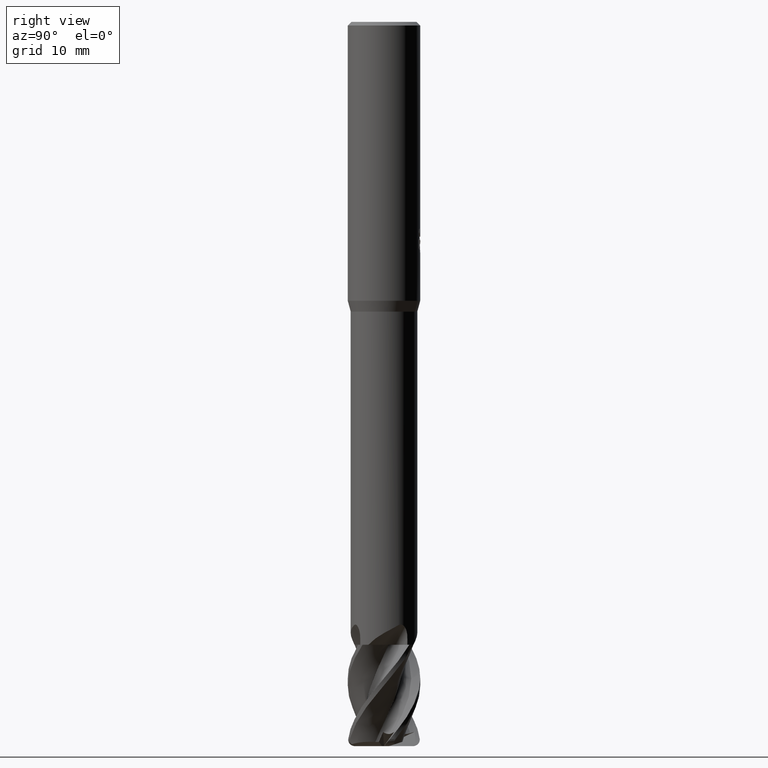
[diagram: clean part render]
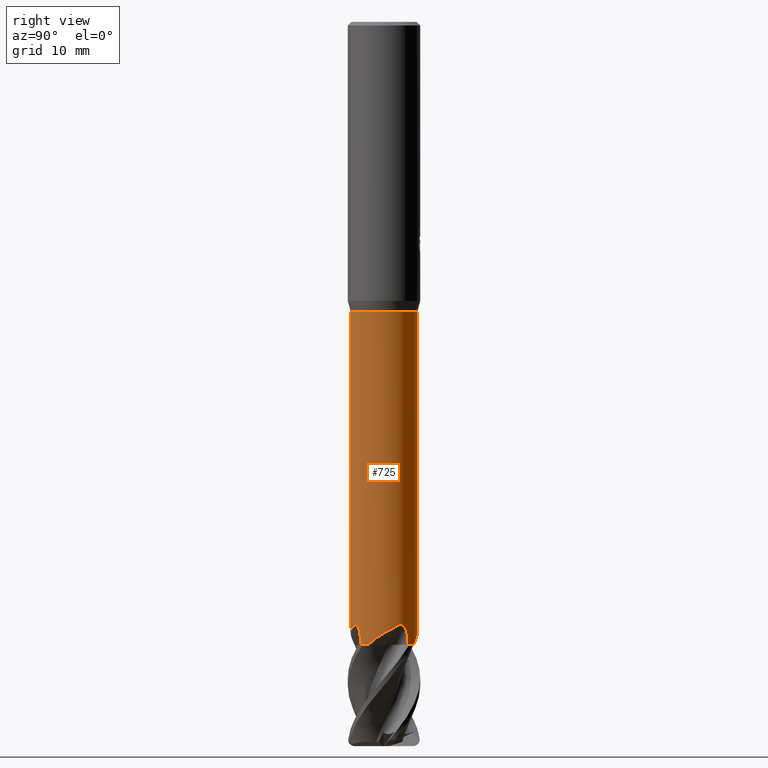
[diagram: same view with one face highlighted and labeled with its STEP entity id]
A machine part, right view. The second image highlights one B-rep face of the part: STEP entity #725.
In plain terms, the highlighted cylindrical surface (edge-blend (fillet) strip) has radius 4.5999 mm, axis along (-0, -0, 1).
Its self-contained STEP definition (entity closure, byte-faithful):
#537=VERTEX_POINT('',#1564);
#555=EDGE_CURVE('',#919,#1347,#1583,.T.);
#613=VERTEX_POINT('',#1647);
#625=EDGE_CURVE('',#795,#1455,#1660,.T.);
#659=VERTEX_POINT('',#1696);
#661=EDGE_CURVE('',#919,#537,#1698,.T.);
#725=ADVANCED_FACE('',(#1768),#1769,.T.);
#795=VERTEX_POINT('',#1848);
#865=EDGE_CURVE('',#1009,#1355,#1922,.T.);
#867=EDGE_CURVE('',#1347,#1171,#1924,.T.);
#919=VERTEX_POINT('',#1979);
#955=VERTEX_POINT('',#2018);
#1003=VERTEX_POINT('',#2070);
#1005=EDGE_CURVE('',#955,#659,#2072,.T.);
#1009=VERTEX_POINT('',#2076);
#1105=EDGE_CURVE('',#1171,#1003,#2185,.T.);
#1159=EDGE_CURVE('',#613,#1355,#2243,.T.);
#1165=EDGE_CURVE('',#659,#537,#2250,.T.);
#1171=VERTEX_POINT('',#2257);
#1249=EDGE_CURVE('',#1009,#1455,#2348,.T.);
#1323=EDGE_CURVE('',#795,#955,#2431,.T.);
#1347=VERTEX_POINT('',#2456);
#1355=VERTEX_POINT('',#2464);
#1455=VERTEX_POINT('',#2571);
#1499=EDGE_CURVE('',#613,#1003,#2619,.T.);
#1564=CARTESIAN_POINT('',(3.23073937328361,-3.27442561442691,-86.0));
#1583=B_SPLINE_CURVE_WITH_KNOTS('',3,(#2707,#2708,#2709,#2710,#2711,#2712,#2713,#2714),.UNSPECIFIED.,.F.,.F.,(4,2,2,4),(0.0,1.70493436532066,3.59896437571405,5.17647264822824),.UNSPECIFIED.);
#1647=CARTESIAN_POINT('',(2.14627587812099,4.06854271914355,-86.0));
#1660=LINE('',#3360,#3361);
#1696=CARTESIAN_POINT('',(3.21558660220532,-3.28930734444467,-84.878123541261));
#1698=CIRCLE('',#3507,4.59995);
#1768=FACE_OUTER_BOUND('',#4046,.T.);
#1769=CYLINDRICAL_SURFACE('',#4047,4.59995);
#1848=CARTESIAN_POINT('',(3.82072561758872E-012,-4.59995,-84.3835604199532));
#1922=LINE('',#5705,#5706);
#1924=B_SPLINE_CURVE_WITH_KNOTS('',3,(#5709,#5710,#5711,#5712,#5713,#5714,#5715,#5716,#5717,#5718,#5719,#5720,#5721,#5722),.UNSPECIFIED.,.F.,.F.,(4,2,2,2,2,2,4),(0.0,0.365524080848916,0.678645118867424,1.01233447023191,1.46877266735542,2.008666421511,2.57798926064407),.UNSPECIFIED.);
#1979=CARTESIAN_POINT('',(4.06854271914185,-2.14627587812421,-86.0000000000036));
#2018=CARTESIAN_POINT('',(1.99448074808532,-4.14506773744616,-83.2942715364873));
#2070=CARTESIAN_POINT('',(3.27442561442686,3.23073937328365,-86.0000000000036));
#2072=B_SPLINE_CURVE_WITH_KNOTS('',3,(#6840,#6841,#6842,#6843,#6844,#6845,#6846,#6847,#6848,#6849,#6850,#6851,#6852,#6853),.UNSPECIFIED.,.F.,.F.,(4,2,2,2,2,2,4),(0.0,0.365524080848692,0.678645118866934,1.01233447023122,1.4687726673547,2.00866642151005,2.57798926064289),.UNSPECIFIED.);
#2076=CARTESIAN_POINT('',(0.0,4.59995,-40.0));
#2185=B_SPLINE_CURVE_WITH_KNOTS('',3,(#7914,#7915,#7916,#7917),.UNSPECIFIED.,.F.,.F.,(4,4),(0.0,1.12205344353698),.UNSPECIFIED.);
#2243=B_SPLINE_CURVE_WITH_KNOTS('',3,(#8086,#8087,#8088,#8089,#8090,#8091,#8092,#8093),.UNSPECIFIED.,.F.,.F.,(4,2,2,4),(0.0,1.70493436532045,3.59896437571342,5.17647264823415),.UNSPECIFIED.);
#2250=B_SPLINE_CURVE_WITH_KNOTS('',3,(#8111,#8112,#8113,#8114),.UNSPECIFIED.,.F.,.F.,(4,4),(0.0,1.12205344352954),.UNSPECIFIED.);
#2257=CARTESIAN_POINT('',(3.28930734444467,3.21558660220532,-84.8781235412611));
#2348=CIRCLE('',#8574,4.59995);
#2431=B_SPLINE_CURVE_WITH_KNOTS('',3,(#9033,#9034,#9035,#9036,#9037,#9038,#9039,#9040),.UNSPECIFIED.,.F.,.F.,(4,2,2,4),(0.0,1.70493436532048,3.59896437571343,5.17647264823394),.UNSPECIFIED.);
#2456=CARTESIAN_POINT('',(4.14506773744616,1.99448074808532,-83.2942715364874));
#2464=CARTESIAN_POINT('',(-3.81600716973406E-012,4.59995,-84.3835604199532));
#2571=CARTESIAN_POINT('',(5.63312799726525E-016,-4.59995,-40.0));
#2619=CIRCLE('',#10251,4.59995);
#2707=CARTESIAN_POINT('',(4.06854271914356,-2.14627587812096,-86.0));
#2708=CARTESIAN_POINT('',(4.2589216236375,-1.78538811264159,-85.6044070229937));
#2709=CARTESIAN_POINT('',(4.41346080658083,-1.37852316778856,-85.2637920657261));
#2710=CARTESIAN_POINT('',(4.61112768612653,-0.40967752157211,-84.6005266969016));
#2711=CARTESIAN_POINT('',(4.6313435346297,0.132498817150505,-84.3044809206591));
#2712=CARTESIAN_POINT('',(4.48095319948877,1.13745867430967,-83.7701923017434));
#2713=CARTESIAN_POINT('',(4.34438504233336,1.58024574942925,-83.5402028533187));
#2714=CARTESIAN_POINT('',(4.14506773744615,1.99448074808533,-83.2942715364873));
#3360=CARTESIAN_POINT('',(5.63312799726528E-016,-4.59995,-63.0));
#3361=VECTOR('',#10662,1.0);
#3507=AXIS2_PLACEMENT_3D('',#10692,#10693,#10694);
#4046=EDGE_LOOP('',(#10769,#10770,#10771,#10772,#10773,#10774,#10775,#10776,#10777,#10778,#10779,#10780));
#4047=AXIS2_PLACEMENT_3D('',#10781,#10782,#10783);
#5705=CARTESIAN_POINT('',(-5.63312799726521E-016,4.59995,-63.0));
#5706=VECTOR('',#10915,1.0);
#5709=CARTESIAN_POINT('',(4.1450677374434,1.99448074809107,-83.2942715367484));
#5710=CARTESIAN_POINT('',(4.09632706450126,2.09577698326762,-83.2472743387914));
#5711=CARTESIAN_POINT('',(4.04127333679034,2.20055735674988,-83.2189270971695));
#5712=CARTESIAN_POINT('',(3.92803991636425,2.39601859889025,-83.2164349155623));
#5713=CARTESIAN_POINT('',(3.87418319370222,2.48186577483918,-83.2352070784563));
#5714=CARTESIAN_POINT('',(3.76253993627581,2.64830580737834,-83.3137566058936));
#5715=CARTESIAN_POINT('',(3.70753317033121,2.72409449648218,-83.374183632402));
#5716=CARTESIAN_POINT('',(3.58776179296999,2.88106136816528,-83.5482180583247));
#5717=CARTESIAN_POINT('',(3.52734960794906,2.95348554413679,-83.6724596358745));
#5718=CARTESIAN_POINT('',(3.41918188144712,3.078433877171,-83.9614944184439));
#5719=CARTESIAN_POINT('',(3.37391772971295,3.12702287041988,-84.1341842693755));
#5720=CARTESIAN_POINT('',(3.30997128247274,3.19466944900749,-84.4944769243256));
#5721=CARTESIAN_POINT('',(3.29201988903747,3.21281186964317,-84.6867159258005));
#5722=CARTESIAN_POINT('',(3.28930734451459,3.21558660213381,-84.8781235412617));
#6840=CARTESIAN_POINT('',(1.99448074809107,-4.14506773744339,-83.2942715367484));
#6841=CARTESIAN_POINT('',(2.09577698326755,-4.09632706450129,-83.2472743387914));
#6842=CARTESIAN_POINT('',(2.20055735674985,-4.04127333679036,-83.2189270971694));
#6843=CARTESIAN_POINT('',(2.39601859889025,-3.92803991636425,-83.2164349155622));
#6844=CARTESIAN_POINT('',(2.48186577483918,-3.87418319370222,-83.2352070784563));
#6845=CARTESIAN_POINT('',(2.64830580737836,-3.7625399362758,-83.3137566058936));
#6846=CARTESIAN_POINT('',(2.72409449648222,-3.70753317033118,-83.374183632402));
#6847=CARTESIAN_POINT('',(2.88106136816527,-3.58776179297,-83.5482180583246));
#6848=CARTESIAN_POINT('',(2.95348554413677,-3.52734960794908,-83.6724596358744));
#6849=CARTESIAN_POINT('',(3.078433877171,-3.41918188144712,-83.9614944184439));
#6850=CARTESIAN_POINT('',(3.12702287041988,-3.37391772971295,-84.1341842693754));
#6851=CARTESIAN_POINT('',(3.19466944900749,-3.30997128247274,-84.4944769243256));
#6852=CARTESIAN_POINT('',(3.21281186964317,-3.29201988903747,-84.6867159258004));
#6853=CARTESIAN_POINT('',(3.21558660213381,-3.28930734451459,-84.8781235412616));
#7914=CARTESIAN_POINT('',(3.28930734444469,3.2155866022053,-84.878123541261));
#7915=CARTESIAN_POINT('',(3.28400801737564,3.2210074219826,-85.2520645224575));
#7916=CARTESIAN_POINT('',(3.27904161177262,3.22606095815985,-85.626039403081));
#7917=CARTESIAN_POINT('',(3.27442561442691,3.23073937328361,-86.0));
#8086=CARTESIAN_POINT('',(2.14627587812421,4.06854271914185,-86.0000000000035));
#8087=CARTESIAN_POINT('',(1.78538811264524,4.25892162363594,-85.604407022997));
#8088=CARTESIAN_POINT('',(1.37852316779266,4.41346080657951,-85.2637920657293));
#8089=CARTESIAN_POINT('',(0.409677521577045,4.61112768612605,-84.6005266969045));
#8090=CARTESIAN_POINT('',(-0.132498817145248,4.63134353462979,-84.3044809206619));
#8091=CARTESIAN_POINT('',(-1.137458674306,4.48095319948986,-83.7701923017453));
#8092=CARTESIAN_POINT('',(-1.58024574942752,4.3443850423342,-83.5402028533197));
#8093=CARTESIAN_POINT('',(-1.99448074808533,4.14506773744615,-83.2942715364873));
#8111=CARTESIAN_POINT('',(3.21558660220531,-3.2893073444447,-84.878123541261));
#8112=CARTESIAN_POINT('',(3.22100742198257,-3.28400801737568,-85.2520645224549));
#8113=CARTESIAN_POINT('',(3.22606095815986,-3.2790416117726,-85.6260394030816));
#8114=CARTESIAN_POINT('',(3.23073937328366,-3.27442561442686,-86.0000000000036));
#8574=AXIS2_PLACEMENT_3D('',#11353,#11354,#11355);
#9033=CARTESIAN_POINT('',(-2.14627587812429,-4.06854271914181,-86.0000000000036));
#9034=CARTESIAN_POINT('',(-1.78538811264533,-4.25892162363591,-85.6044070229971));
#9035=CARTESIAN_POINT('',(-1.37852316779276,-4.41346080657947,-85.2637920657293));
#9036=CARTESIAN_POINT('',(-0.40967752157722,-4.61112768612602,-84.6005266969046));
#9037=CARTESIAN_POINT('',(0.132498817145001,-4.63134353462983,-84.304480920662));
#9038=CARTESIAN_POINT('',(1.13745867430591,-4.4809531994899,-83.7701923017453));
#9039=CARTESIAN_POINT('',(1.58024574942747,-4.34438504233423,-83.5402028533197));
#9040=CARTESIAN_POINT('',(1.99448074808533,-4.14506773744617,-83.2942715364873));
#10251=AXIS2_PLACEMENT_3D('',#11628,#11629,#11630);
#10662=DIRECTION('',(-0.0,-0.0,1.0));
#10692=CARTESIAN_POINT('',(0.0,0.0,-86.0));
#10693=DIRECTION('',(0.0,0.0,-1.0));
#10694=DIRECTION('',(0.0,1.0,0.0));
#10769=ORIENTED_EDGE('',*,*,#865,.F.);
#10770=ORIENTED_EDGE('',*,*,#1249,.T.);
#10771=ORIENTED_EDGE('',*,*,#625,.F.);
#10772=ORIENTED_EDGE('',*,*,#1323,.T.);
#10773=ORIENTED_EDGE('',*,*,#1005,.T.);
#10774=ORIENTED_EDGE('',*,*,#1165,.T.);
#10775=ORIENTED_EDGE('',*,*,#661,.F.);
#10776=ORIENTED_EDGE('',*,*,#555,.T.);
#10777=ORIENTED_EDGE('',*,*,#867,.T.);
#10778=ORIENTED_EDGE('',*,*,#1105,.T.);
#10779=ORIENTED_EDGE('',*,*,#1499,.F.);
#10780=ORIENTED_EDGE('',*,*,#1159,.T.);
#10781=CARTESIAN_POINT('',(0.0,0.0,-63.0));
#10782=DIRECTION('',(-0.0,-0.0,1.0));
#10783=DIRECTION('',(0.0,1.0,0.0));
#10915=DIRECTION('',(0.0,0.0,-1.0));
#11353=CARTESIAN_POINT('',(0.0,0.0,-40.0));
#11354=DIRECTION('',(0.0,0.0,-1.0));
#11355=DIRECTION('',(0.0,1.0,0.0));
#11628=CARTESIAN_POINT('',(0.0,0.0,-86.0));
#11629=DIRECTION('',(0.0,0.0,-1.0));
#11630=DIRECTION('',(0.0,1.0,0.0));